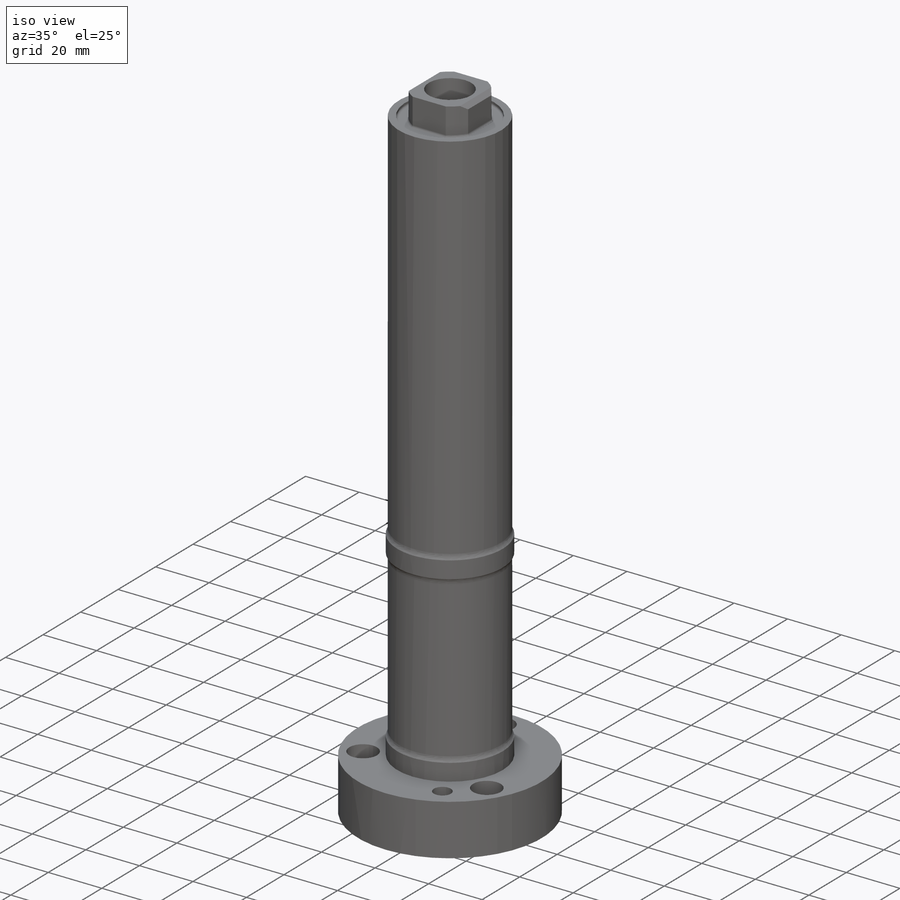
[diagram: iso view]
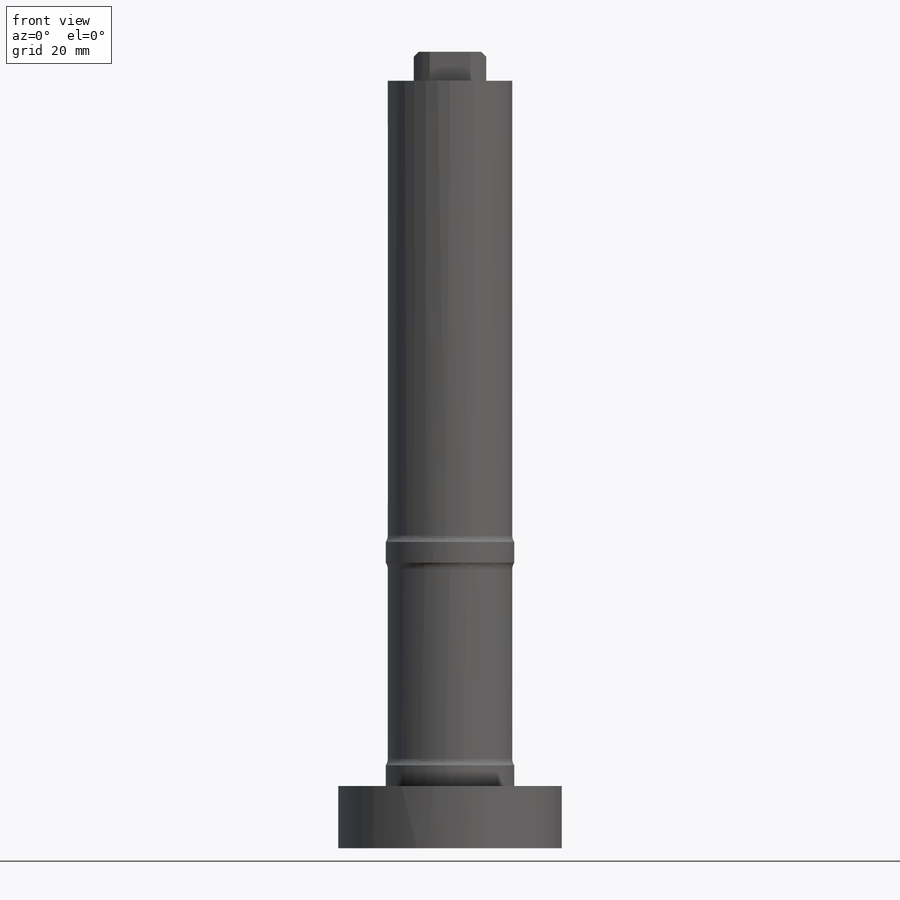
[diagram: front view]
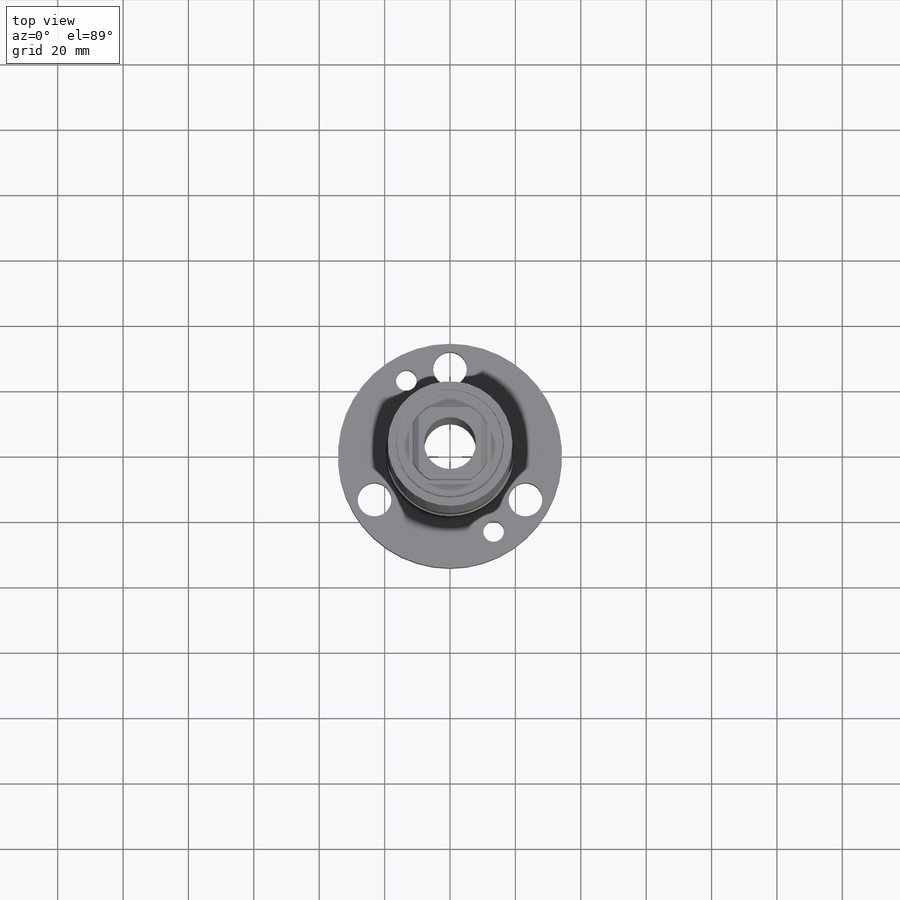
[diagram: top view]
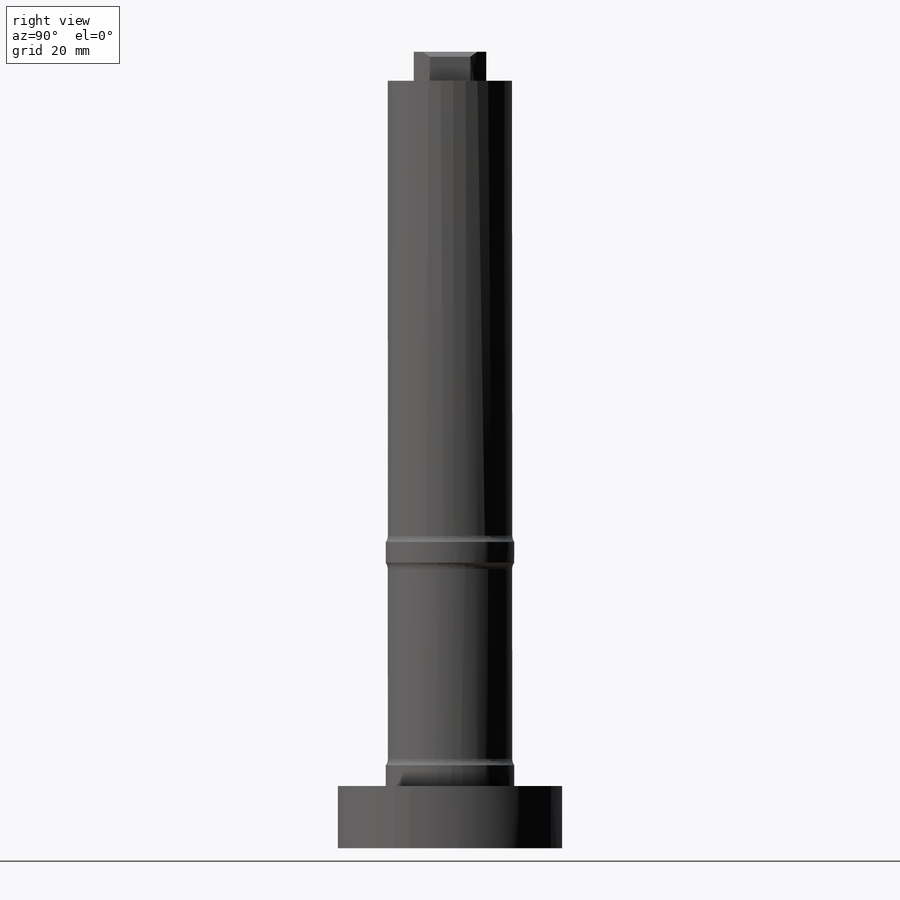
[diagram: right view]
SOLIDWORKS PART (.sldprt)
format: sldprt  version: not decoded by parser v0  size: 403,968 bytes
history: native  units: mm
features: sketch x9, plane x3, cut_extrude x2, fillet x2, hole x2, material x1, revolve x1, extrude x1, chamfer x1 (+11 scaffold rows collapsed)
feature tree (33):
  scaffold x11  (default folders/planes/origin — collapsed)
  material  "17-4 PH SSTL, H 1150"
  plane  "XY"
  plane  "XZ"
  plane  "YZ"
  sketch  "Sketch1"  dims[c1.D1=11.1125mm c1.D2=19.05mm c1.D3=68.58mm c1.D4=215.9mm c1.D5=39.3446mm c1.D6=5.08mm c1.D7=12.7mm c1.D8=215.9mm c1.D9=90.0deg c2.D4=215.7222mm c2.D8=38.1mm c2.D9=74.676mm c2.D6=7.112mm c2.D7=2.54mm c2.D10=1.524mm c2.D11=6.35mm c2.D12=6.35mm]
  revolve  "Revolve1"  Angle=360deg
  sketch  "Sketch9"  dims[c1.D2=25.4mm c1.D1=22.1742mm c2.D2=~14.695939mm c2.D3=~12.388093mm]
  extrude  "Extrude1"  Depth=8.89mm
  sketch  "Sketch6"  dims[D1=15.875mm]
  cut_extrude  "Cut-Extrude3"  [1 undecoded]
  sketch  "Sketch7"  dims[D1=25.4mm]
  cut_extrude  "Cut-Extrude4"  Depth=115.062mm
  fillet  "Fillet1"  Radius=3.302mm ID=-1
  sketch  "Sketch11"  dims[D1=9.144mm D2=128.8542mm D3=15.24mm D4=144.0942mm]
  hole  "1/4-20 Tapped Hole1"  Diameter=6.35mm Depth=243.6622mm
  sketch  "Sketch13"  dims[c1.D1=26.67mm c2.D1=26.67mm c2.D2=100.0mm c3.D2=30.0deg]
  sketch  "Sketch14"  dims[hole-wizard template sketch: 54 standard entries collapsed; hole parameters kept: c17.Thread Major Dia.=6.35mm c17.Thru Tap Drill Depth=243.6622mm c17.Near C'Sink Dia.=~9.36498mm c17.D4=~3.666174mm c17.Near C'Sink Angle=120.0deg]
  hole  "13/32 (0.40625) Diameter Hole1"  Diameter=10.31875mm Depth=243.6622mm
  sketch  "Sketch16"  dims[c1.D1=26.67mm c2.D1=120.0deg c2.D2=26.67mm c3.D2=120.0deg c3.D3=26.67mm]
  sketch  "Sketch17"  dims[hole-wizard template sketch: 60 standard entries collapsed; hole parameters kept: c18.Thru Hole Depth=243.6622mm]
  fillet  "Fillet2"  Radius=0.762mm
  chamfer  "Chamfer1"  Distance=1.524mm Angle=45deg
decode coverage: 17 of 18 modeling features carry decoded parameters
note: ~ marks probable driven/reference dimensions
note: 1 parameter value undecoded
note: suppression state not decoded; provenance and decode notes live in map.json
